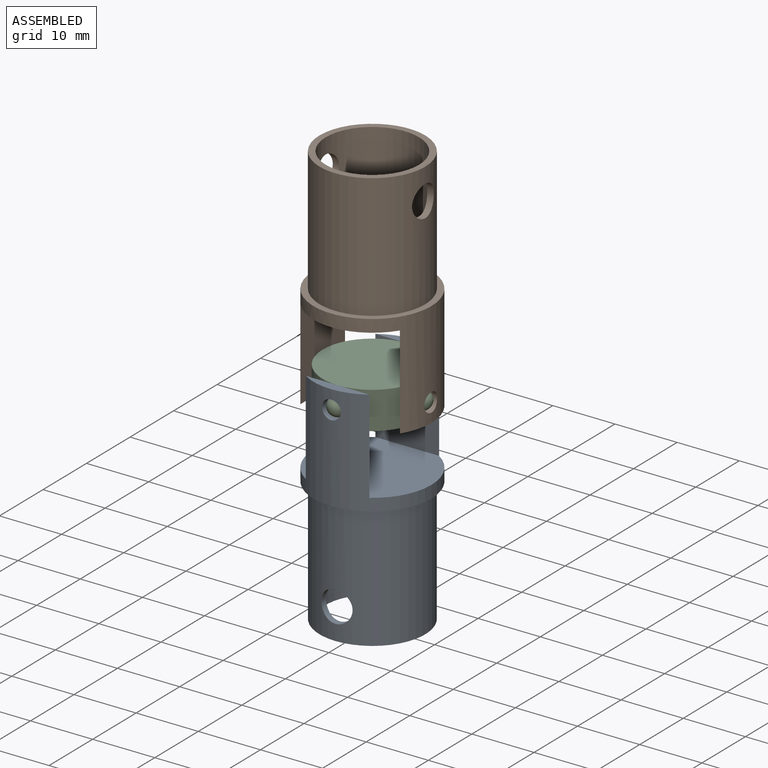
[diagram: assembled view]
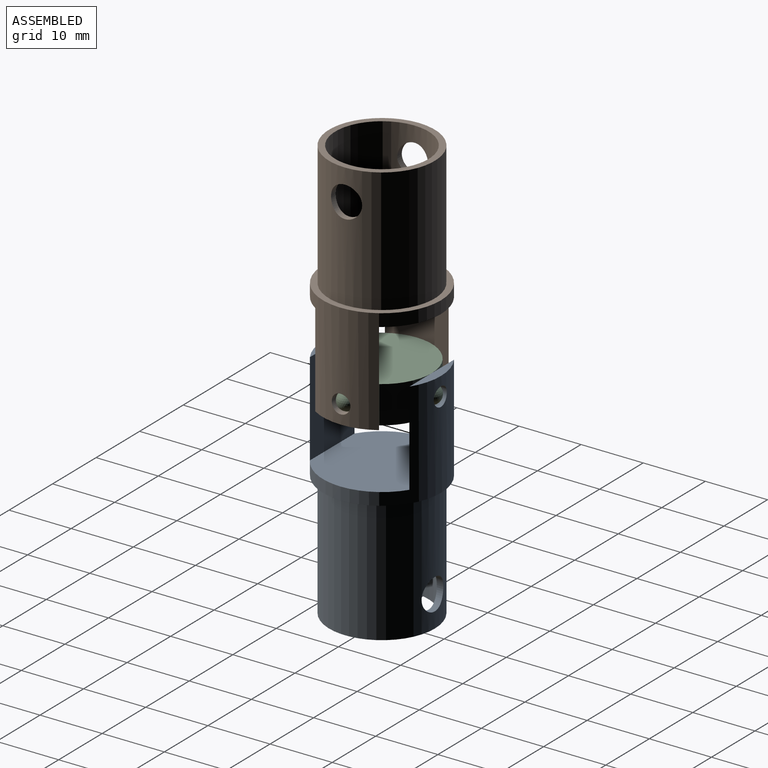
[diagram: assembled view, second angle]
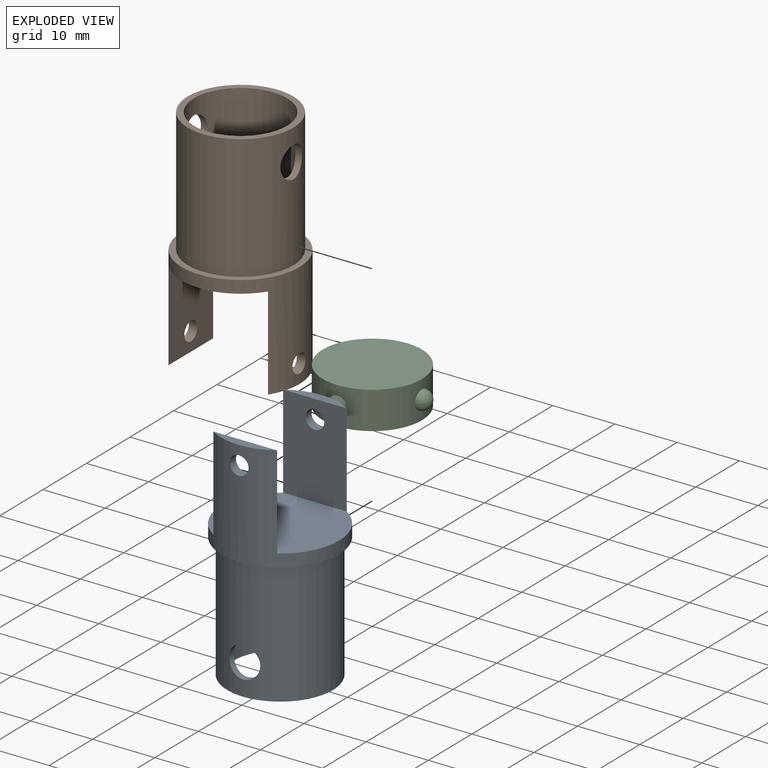
[diagram: exploded view]
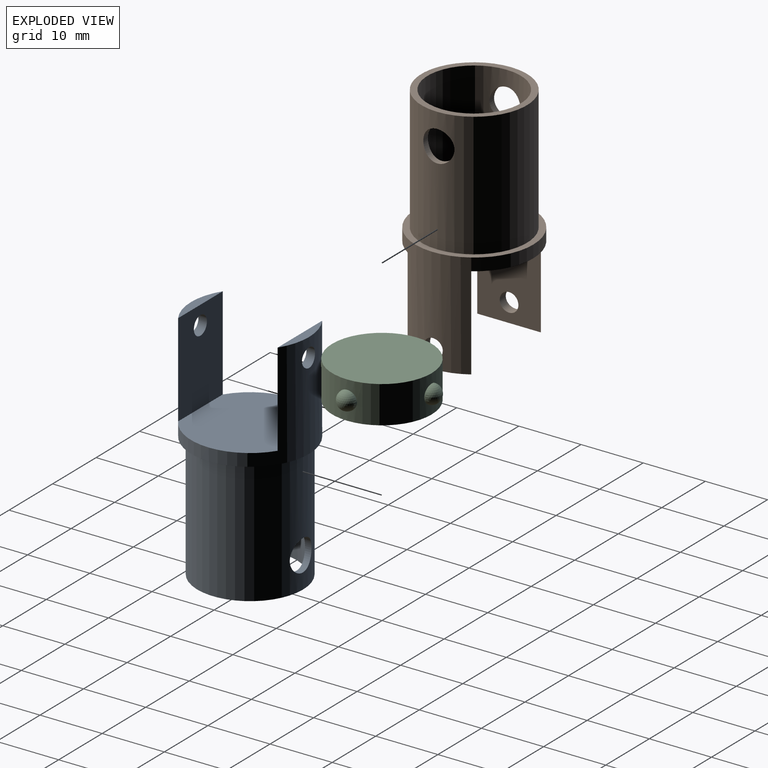
[diagram: exploded view, second angle]
ASSEMBLY  parts=3 mates=2
PART A: 15 faces, bbox 19x37x19 mm
  f0: cylinder r=7.5mm len=20mm, axis (0,1,0), area 902.6mm2, adj f2,f3,f4,f8
  f1: cylinder r=8.5mm len=20mm, axis (0,1,0), area 1028.4mm2, adj f2,f3,f4,f5
  f2: plane 17x17mm, normal (0,1,0), area 50.3mm2, adj f0,f1
  f3: cylinder r=2.5mm len=5mm, axis (1,0,0), area 16.1mm2, adj f0,f1
  f4: cylinder r=2.5mm len=5mm, axis (1,0,0), area 16.1mm2, adj f0,f1
  f5: plane 19x19mm, normal (0,1,0), area 56.5mm2, adj f1,f7
  f6: plane 19x16mm, normal (0,-1,0), area 262.7mm2, adj f7,f9,f11
  f7: cylinder r=9.5mm len=19mm, axis (0,1,0), area 429.9mm2, adj f5,f6,f9,f10,f11,f12,f13,f14
  f8: plane 15x15mm, normal (0,1,0), area 176.7mm2, adj f0
  f9: plane 15x10.25mm, normal (-1,0,0), area 146.6mm2, adj f6,f7,f10,f14
  f10: plane 10.25x1.5mm, normal (0,-1,0), area 10.4mm2, adj f7,f9
  f11: plane 15x10.25mm, normal (1,0,0), area 146.6mm2, adj f6,f7,f12,f13
  f12: plane 10.25x1.5mm, normal (0,-1,0), area 10.4mm2, adj f7,f11
  f13: cylinder r=1.5mm len=3mm, axis (1,0,0), area 13.6mm2, adj f7,f11
  f14: cylinder r=1.5mm len=3mm, axis (1,0,0), area 13.6mm2, adj f7,f9
PART B: same geometry as A
PART C: 15 faces, bbox 19x6x19 mm
  f0: cylinder r=8mm len=16mm, axis (0,1,0), area 273.2mm2, adj f1,f2,f3,f4,f5,f6,f7,f8
  f1: plane 16x16mm, normal (0,-1,0), area 201.1mm2, adj f0
  f2: plane 16x16mm, normal (0,1,0), area 201.1mm2, adj f0
  f3: cylinder r=1.5mm len=3mm, axis (1,0,0), area 0.3mm2, adj f0,f14
  f4: cylinder r=1.5mm len=3mm, axis (1,0,0), area 0.3mm2, adj f0,f14
  f5: cylinder r=1.5mm len=3mm, axis (1,0,0), area 0.3mm2, adj f0,f12
  f6: cylinder r=1.5mm len=3mm, axis (1,0,0), area 0.3mm2, adj f0,f12
  f7: cylinder r=1.5mm len=3mm, axis (0,0,1), area 0.3mm2, adj f0,f13
  f8: cylinder r=1.5mm len=3mm, axis (0,0,1), area 0.3mm2, adj f0,f13
  f9: cylinder r=1.5mm len=3mm, axis (0,0,1), area 0.3mm2, adj f0,f11
  f10: cylinder r=1.5mm len=3mm, axis (0,0,1), area 0.3mm2, adj f0,f11
  f11: sphere r=1.5mm, area 14.1mm2, adj f9,f10
  f12: sphere r=1.5mm, area 14.1mm2, adj f5,f6
  f13: sphere r=1.5mm, area 14.1mm2, adj f7,f8
  f14: sphere r=1.5mm, area 14.1mm2, adj f3,f4
PLACE A rot(axis=(-0.58,0.58,-0.58),120deg) t=(0,0,-34)mm
PLACE B rot(axis=(0,-0.71,-0.71),180deg) t=(0,0,34)mm
PLACE C rot(axis=(1,0,0),90deg) t=(0,0,3)mm
MATE revolute B.f13 <-> C.f3  axis (-1,0,0) through (8,0,0)mm
MATE revolute A.f13 <-> C.f7  axis (0,1,0) through (0,-8,0)mm
